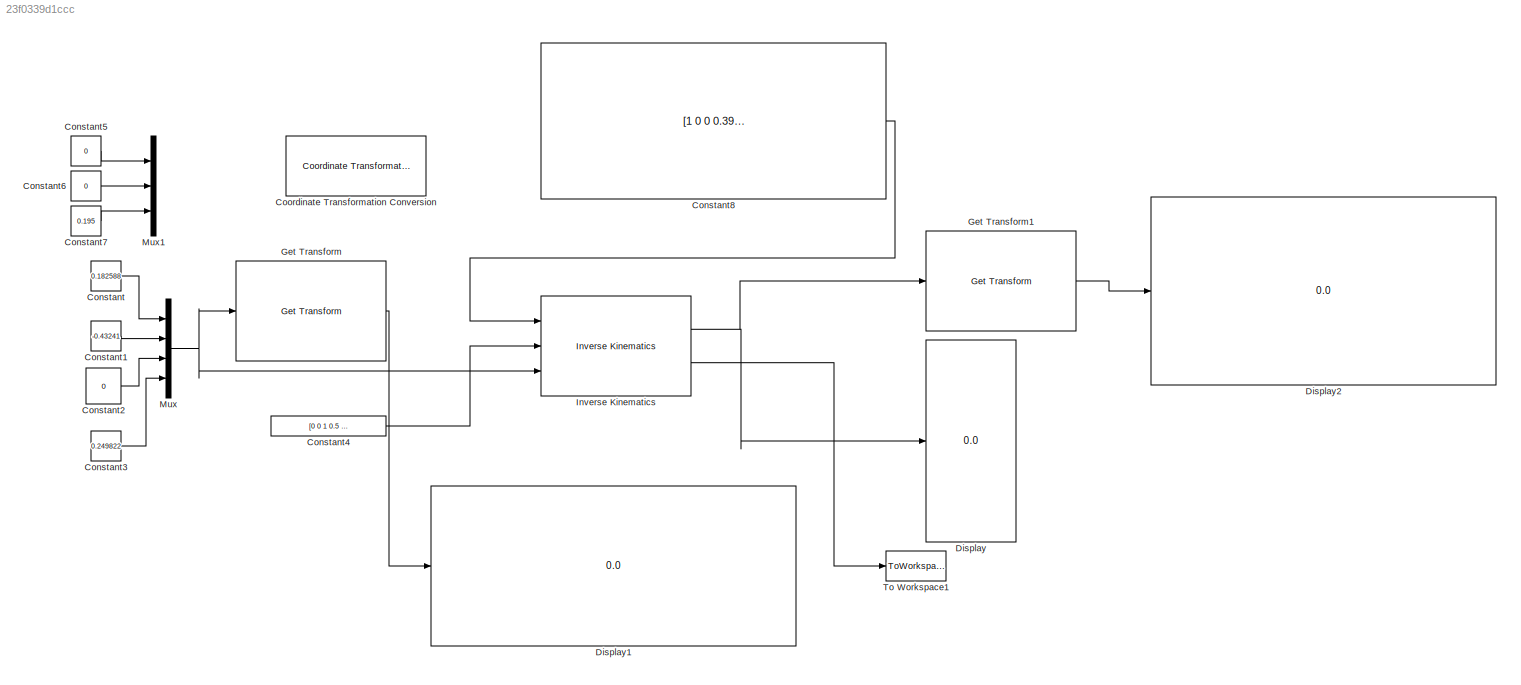
MODEL slx_23f0339d1ccc
KIND model
CONFIG AbsTol = auto
CONFIG EnableMultiTasking = off
CONFIG FixedStep = auto
CONFIG MaxStep = auto
CONFIG MinStep = auto
CONFIG RelTol = 1e-3
CONFIG SampleTimeConstraint = Unconstrained
CONFIG Solver = VariableStepAuto
CONFIG SolverName = VariableStepAuto
CONFIG StartTime = 0.0
CONFIG StopTime = 10.0
WORKSPACE source: MAT-file member
WORKSPACE MCOS: class17 (value not decoded)
BLOCK [Constant] Constant
  Value = 0.182588
BLOCK [Constant] Constant1
  Value = -0.43241
BLOCK [Constant] Constant2
  Value = 0
BLOCK [Constant] Constant3
  Value = 0.249822
BLOCK [Constant] Constant4
  Value = [0 0 1 0.5 0.5 1]
BLOCK [Constant] Constant5
  Commented = on
  Value = 0
BLOCK [Constant] Constant6
  Commented = on
  Value = 0
BLOCK [Constant] Constant7
  Commented = on
  Value = 0.195
BLOCK [Constant] Constant8
  Value = [1 0 0 0.391176;0 1 0 0.00882353;0 0 1 0;0 0 0 1]
BLOCK [Reference] Coordinate Transformation Conversion  REF=robotcorelib/Coordinate Transformation Conversion
  Commented = on
  Ports = [1, 1]
  SourceBlock = robotcorelib/Coordinate Transformation Conversion
  SourceProductBaseCode = RO
  SourceProductName = Robotics System Toolbox
  SourceType = robotics.slcore.internal.block.CoordinateTransformationConversion
BLOCK [Display] Display
  Decimation = 1
  Ports = [1]
BLOCK [Display] Display1
  Decimation = 1
  Ports = [1]
BLOCK [Display] Display2
  Decimation = 1
  Ports = [1]
BLOCK [Reference] Get Transform  REF=robotmaniplib/Get Transform
  Ports = [1, 1]
  SourceBlock = robotmaniplib/Get Transform
  SourceProductBaseCode = RO
  SourceProductName = Robotics System Toolbox
  SourceType = Get Transform
BLOCK [Reference] Get Transform1  REF=robotmaniplib/Get Transform
  Ports = [1, 1]
  SourceBlock = robotmaniplib/Get Transform
  SourceProductBaseCode = RO
  SourceProductName = Robotics System Toolbox
  SourceType = Get Transform
BLOCK [Reference] Inverse Kinematics  REF=robotmaniplib/Inverse Kinematics
  Ports = [3, 2]
  SourceBlock = robotmaniplib/Inverse Kinematics
  SourceProductBaseCode = RO
  SourceProductName = Robotics System Toolbox
  SourceType = Inverse Kinematics
BLOCK [Mux] Mux
  DisplayOption = bar
  Ports = [4, 1]
BLOCK [Mux] Mux1
  Commented = on
  DisplayOption = bar
  Inputs = 3
  Ports = [3, 1]
BLOCK [ToWorkspace] To Workspace1
  FixptAsFi = on
  MaxDataPoints = inf
  Ports = [1]
  SampleTime = -1
  Save2DSignal = 3-D array (concatenate along third dimension)
  SaveFormat = Timeseries
  VariableName = info
LINE Constant1:1 -> Mux:2
LINE Constant2:1 -> Mux:3
LINE Constant3:1 -> Mux:4
LINE Constant4:1 -> Inverse Kinematics:2
LINE Constant5:1 -> Mux1:1
LINE Constant6:1 -> Mux1:2
LINE Constant7:1 -> Mux1:3
LINE Constant8:1 -> Inverse Kinematics:1
LINE Constant:1 -> Mux:1
LINE Get Transform1:1 -> Display2:1
LINE Get Transform:1 -> Display1:1
NET Inverse Kinematics:1 -> Display:1, Get Transform1:1
LINE Inverse Kinematics:2 -> To Workspace1:1
NET Mux:1 -> Get Transform:1, Inverse Kinematics:3
note: NET lines group one-source signal fan-out (src -> all destinations, sorted); 1:1 wires keep LINE
